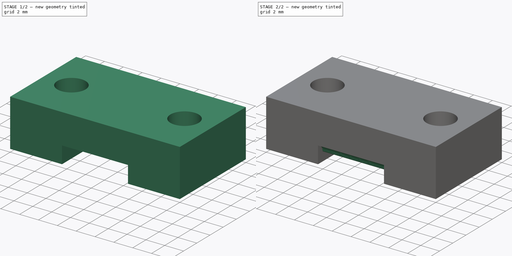
[diagram: build sequence overview — one tinted view per stage of 2, left to right]
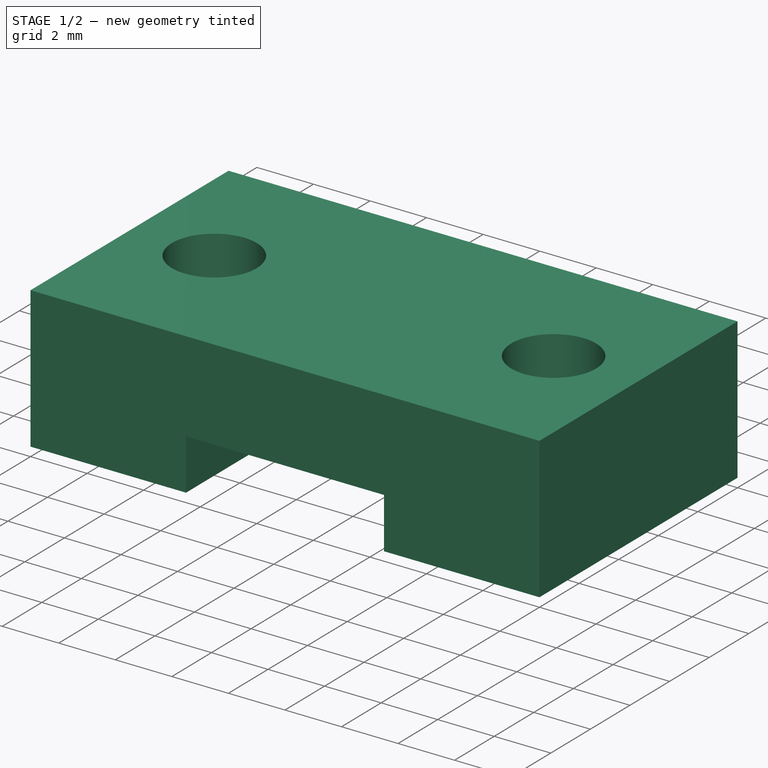
[diagram: stage 1 of 2 — iso view after this stage's code; geometry added in this stage tinted green]
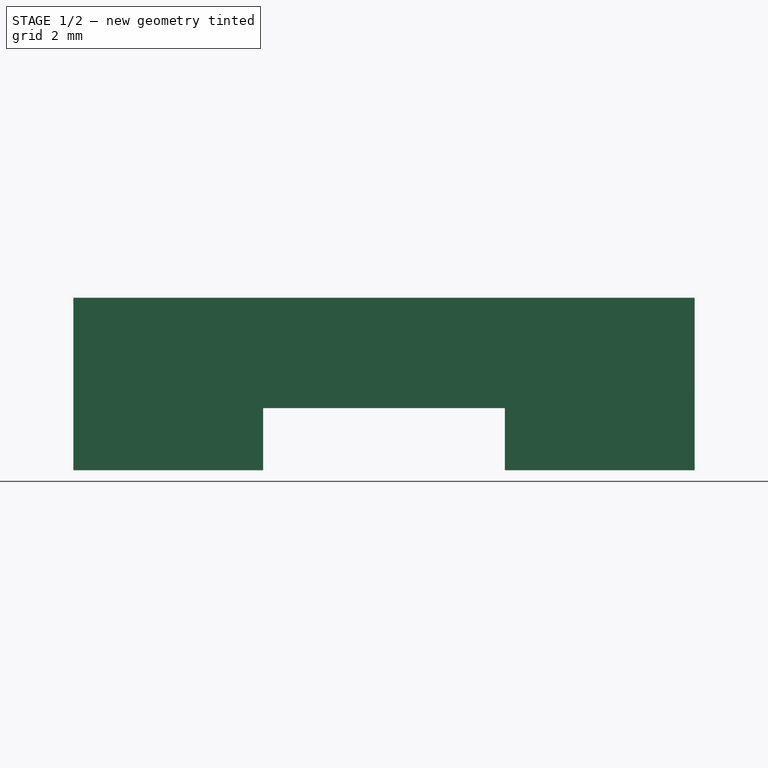
[diagram: stage 1 of 2 — front view after this stage's code; geometry added in this stage tinted green]
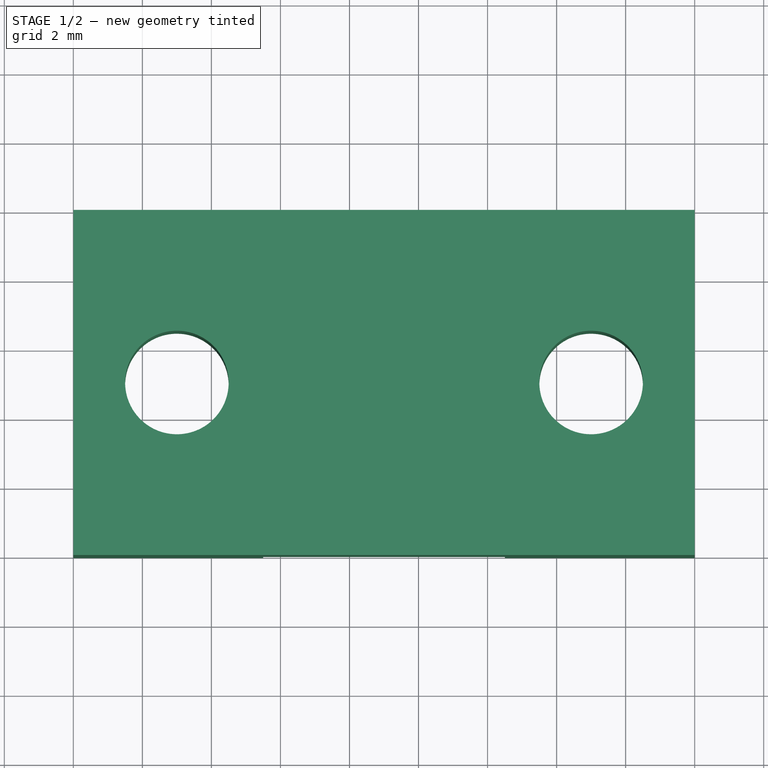
[diagram: stage 1 of 2 — top view after this stage's code; geometry added in this stage tinted green]
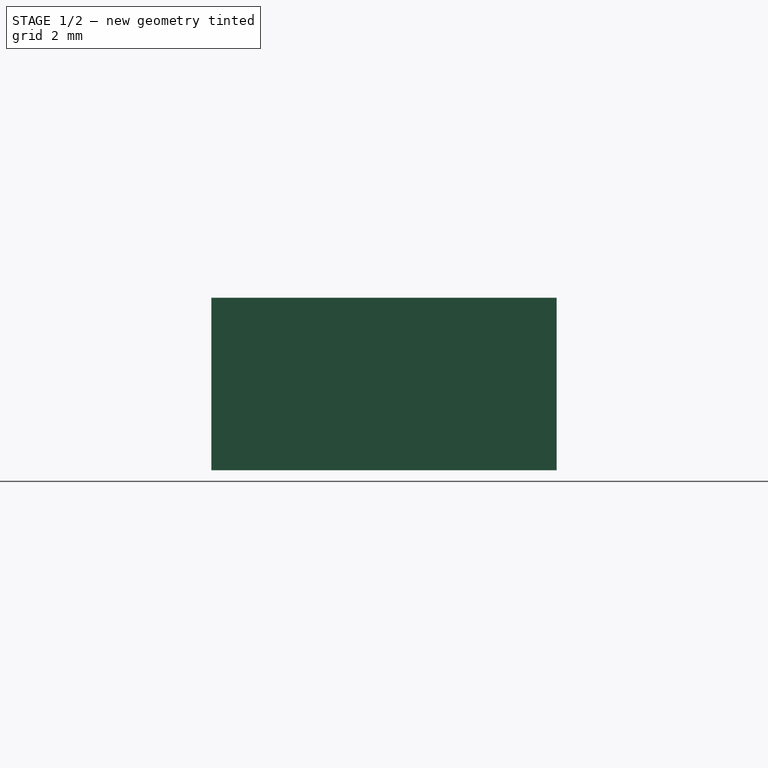
[diagram: stage 1 of 2 — right view after this stage's code; geometry added in this stage tinted green]
FCSTD DOCUMENT  (FreeCAD 0.18R13971 (Git))
Label: BedBeltClamp1
License: All rights reserved
LicenseURL: http://en.wikipedia.org/wiki/All_rights_reserved
objects: Sketcher::SketchObject×3, PartDesign::Pad×2, PartDesign::Plane×1, PartDesign::Pocket×1, PartDesign::Body×1
note: 11 computed .brp shape members not serialized (recipe doc carries the construction recipe); baked Part::Feature solids carry a one-line shape summary decoded from their .brp

FEATURE [Sketcher::SketchObject] Sketch  label="BaseSketch"
  MapMode = 5
  Support = -> [XY_Plane]
  sketch-geometry (12):
    g0: LineSegment StartX=0 StartY=0 StartZ=0 EndX=18 EndY=0 EndZ=0
    g1: LineSegment StartX=18 StartY=0 StartZ=0 EndX=18 EndY=10 EndZ=0
    g2: LineSegment StartX=18 StartY=10 StartZ=0 EndX=0 EndY=10 EndZ=0
    g3: LineSegment StartX=0 StartY=10 StartZ=0 EndX=0 EndY=0 EndZ=0
    g4: Circle CenterX=3 CenterY=5 CenterZ=0 NormalX=0 NormalY=0 NormalZ=1 AngleXU=0 Radius=1.5
    g5: Circle CenterX=15 CenterY=5 CenterZ=0 NormalX=0 NormalY=0 NormalZ=1 AngleXU=0 Radius=1.5
    g6: LineSegment [constr] StartX=3 StartY=5 StartZ=0 EndX=3 EndY=0 EndZ=0
    g7: LineSegment [constr] StartX=3 StartY=5 StartZ=0 EndX=3.00003 EndY=10 EndZ=0
    g8: LineSegment [constr] StartX=15 StartY=5 StartZ=0 EndX=15 EndY=10 EndZ=0
    g9: LineSegment [constr] StartX=15 StartY=5 StartZ=0 EndX=15 EndY=0 EndZ=0
    g10: LineSegment [constr] StartX=3 StartY=5 StartZ=0 EndX=0 EndY=5 EndZ=0
    g11: LineSegment [constr] StartX=15 StartY=5 StartZ=0 EndX=18 EndY=5 EndZ=0
  constraints (35):
    c: Coincident(g0,g1)
    c: Coincident(g1,g2)
    c: Coincident(g2,g3)
    c: Coincident(g3,g0)
    c: Horizontal(g0)
    c: Horizontal(g2)
    c: Vertical(g1)
    c: Vertical(g3)
    c: Coincident(g0,g-1)
    c: Distance(g2) = 18
    c: Distance(g3) = 10
    c: Equal(g4,g5)
    c: Radius(g4) = 1.5
    c: Coincident(g6,g4)
    c: PointOnObject(g6,g0)
    c: Vertical(g6)
    c: Coincident(g7,g4)
    c: PointOnObject(g7,g2)
    c: Coincident(g8,g5)
    c: PointOnObject(g8,g2)
    c: Coincident(g9,g5)
    c: PointOnObject(g9,g0)
    c: Vertical(g9)
    c: Coincident(g10,g4)
    c: PointOnObject(g10,g3)
    c: Horizontal(g10)
    c: Coincident(g11,g5)
    c: PointOnObject(g11,g1)
    c: Horizontal(g11)
    c: Equal(g7,g6)
    c: Equal(g6,g9)
    c: Equal(g9,g8)
    c: Vertical(g8)
    c: Equal(g10,g11)
    c: Distance(g10) = 3
FEATURE [PartDesign::Pad] Pad  label="BasePad"
  Length = 5
  Length2 = 100
  Profile = -> Sketch
  Type = 0
FEATURE [PartDesign::Plane] DatumPlane  label="TeethPlane"
  AttachmentOffset = pos=(0,1.8,5.5) rot=(0,0,1;0rad)
  MapMode = 2
  Placement = pos=(5.5,0,1.8) rot=(0.57735,0.57735,0.57735;2.0944rad)
  Support = -> [YZ_Plane]
FEATURE [Sketcher::SketchObject] Sketch008  label="TeethSketch"
  MapMode = 2
  Placement = pos=(5.5,0,1.8) rot=(0.57735,0.57735,0.57735;2.0944rad)
  Support = -> [DatumPlane]
  sketch-geometry (8):
    g0: BSplineCurve PolesCount=12 KnotsCount=8 Degree=3 IsPeriodic=0
    g1: BSplineCurve PolesCount=12 KnotsCount=8 Degree=3 IsPeriodic=0
    g2: BSplineCurve PolesCount=12 KnotsCount=8 Degree=3 IsPeriodic=0
    g3: LineSegment StartX=10 StartY=0.958783 StartZ=0 EndX=0 EndY=0.958783 EndZ=0
    g4: LineSegment StartX=0 StartY=0.958783 StartZ=0 EndX=0 EndY=0 EndZ=0
    g5: BSplineCurve PolesCount=12 KnotsCount=8 Degree=3 IsPeriodic=0
    g6: BSplineCurve PolesCount=12 KnotsCount=8 Degree=3 IsPeriodic=0
    g7: LineSegment StartX=10 StartY=0 StartZ=0 EndX=10 EndY=0.958783 EndZ=0
  constraints (22):
    c: Coincident(g1,g0)
    c: PointOnObject(g0,g-1)
    c: PointOnObject(g1,g-1)
    c: PointOnObject(g2,g-1)
    c: Horizontal(g3)
    c: Coincident(g4,g3)
    c: Coincident(g4,g-1)
    c: Vertical(g4)
    c: Coincident(g5,g2)
    c: PointOnObject(g5,g-1)
    c: Coincident(g6,g5)
    c: PointOnObject(g6,g-1)
    c: Distance(g0,g0) = 2
    c: Distance(g0,g1) = 2
    c: Distance(g1,g2) = 2
    c: Distance(g2,g5) = 2
    c: Distance(g5,g6) = 2
    c: Coincident(g7,g6)
    c: Coincident(g7,g3)
    c: Vertical(g7)
    c: Coincident(g1,g2)
    c: Coincident(g0,g4)
FEATURE [Sketcher::SketchObject] Sketch009  label="TeethNotchSketch"
  ExternalGeometry = -> [Pad]
  MapMode = 5
  Support = -> [XY_Plane]
  sketch-geometry (6):
    g0: LineSegment StartX=5.5 StartY=0 StartZ=0 EndX=12.5 EndY=0 EndZ=0
    g1: LineSegment StartX=12.5 StartY=0 StartZ=0 EndX=12.5 EndY=10 EndZ=0
    g2: LineSegment StartX=12.5 StartY=10 StartZ=0 EndX=5.5 EndY=10 EndZ=0
    g3: LineSegment StartX=5.5 StartY=10 StartZ=0 EndX=5.5 EndY=0 EndZ=0
    g4: LineSegment [constr] StartX=5.5 StartY=10 StartZ=0 EndX=0 EndY=10 EndZ=0
    g5: LineSegment [constr] StartX=12.5 StartY=10 StartZ=0 EndX=18 EndY=10 EndZ=0
  constraints (16):
    c: Coincident(g0,g1)
    c: Coincident(g1,g2)
    c: Coincident(g2,g3)
    c: Coincident(g3,g0)
    c: Horizontal(g0)
    c: Horizontal(g2)
    c: Vertical(g1)
    c: Vertical(g3)
    c: PointOnObject(g0,g-1)
    c: PointOnObject(g1,g-4)
    c: Coincident(g4,g2)
    c: Coincident(g4,g-4)
    c: Coincident(g5,g1)
    c: Coincident(g5,g-4)
    c: Equal(g5,g4)
    c: Distance(g2) = 7
FEATURE [PartDesign::Pocket] Pocket  label="TeethNotchPocket"
  BaseFeature = -> Pad
  Length = 1.8
  Length2 = 100
  Profile = -> Sketch009
  Reversed = true
  Type = 0
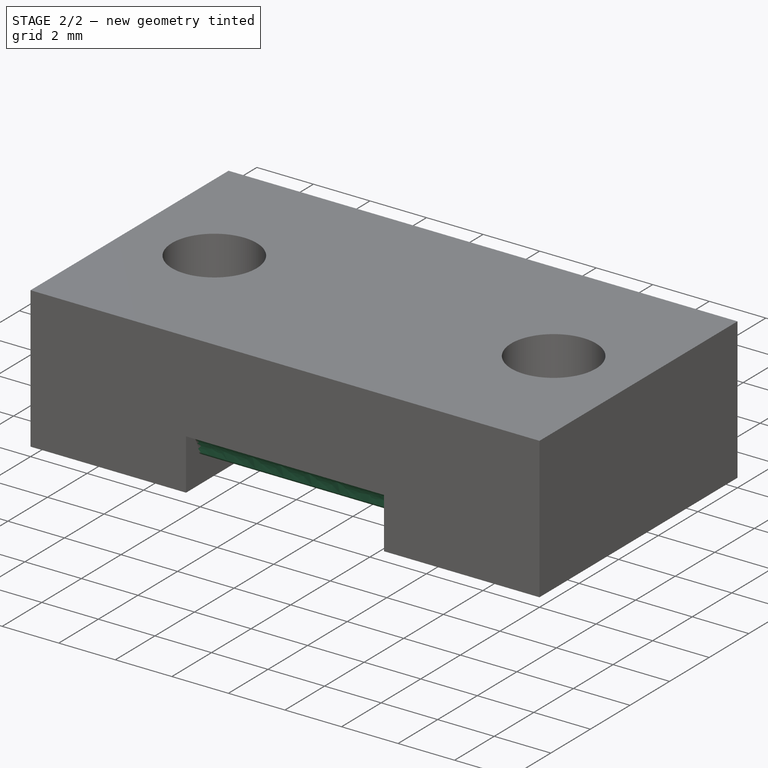
[diagram: stage 2 of 2 — iso view after this stage's code; geometry added in this stage tinted green]
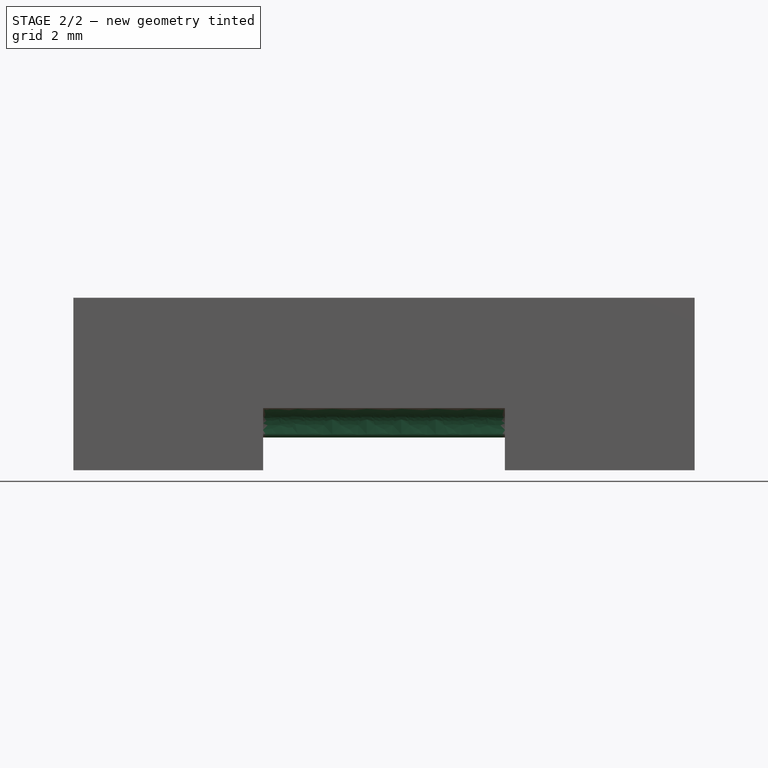
[diagram: stage 2 of 2 — front view after this stage's code; geometry added in this stage tinted green]
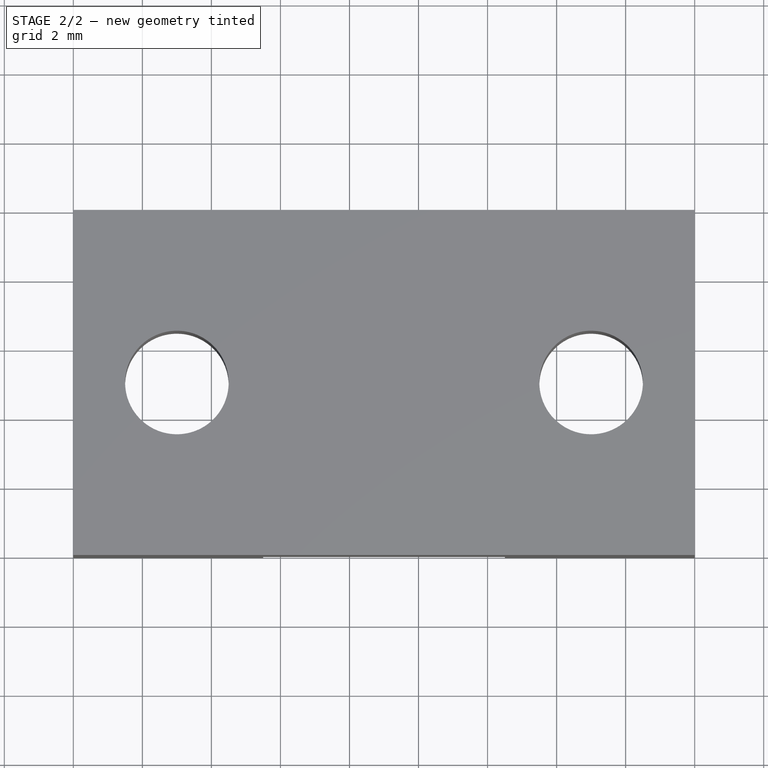
[diagram: stage 2 of 2 — top view after this stage's code; geometry added in this stage tinted green]
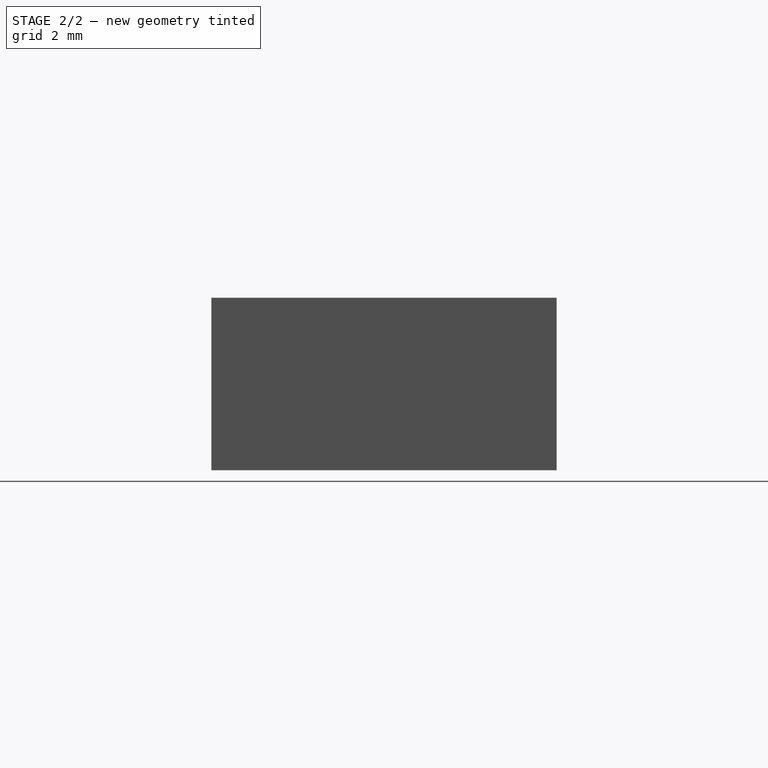
[diagram: stage 2 of 2 — right view after this stage's code; geometry added in this stage tinted green]
FEATURE [PartDesign::Pad] Pad001  label="TeethPad"
  BaseFeature = -> Pocket
  Length = 7
  Length2 = 100
  Profile = -> Sketch008
  Type = 0
FEATURE [PartDesign::Body] Body  label="ClampBase"
  Group = -> [Sketch,Pad,Sketch009,Pocket,DatumPlane,Sketch008,Pad001]
  Origin = -> Origin
  Tip = -> Pad001
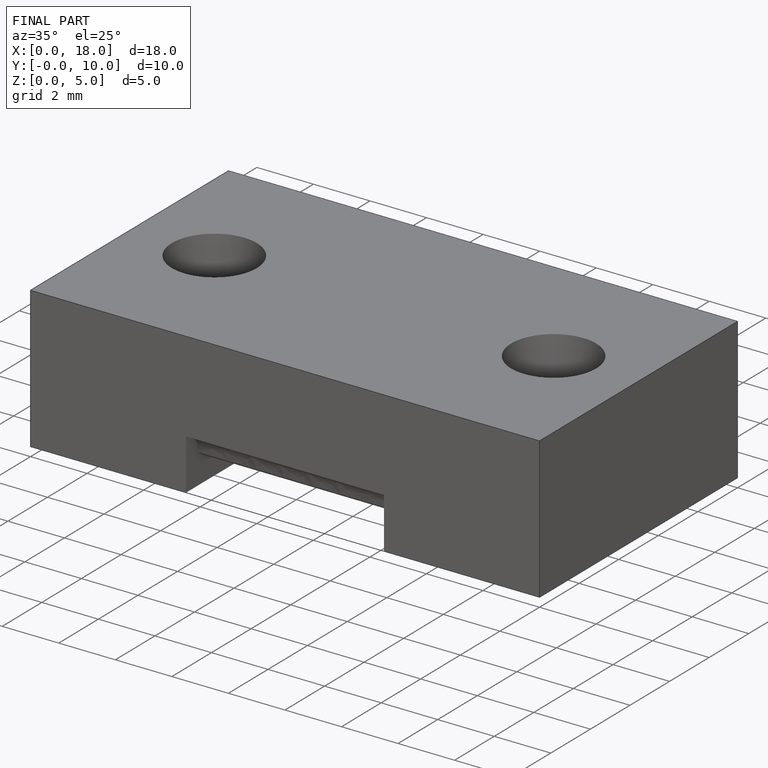
[diagram: finished part — iso view with bounding-box wireframe]
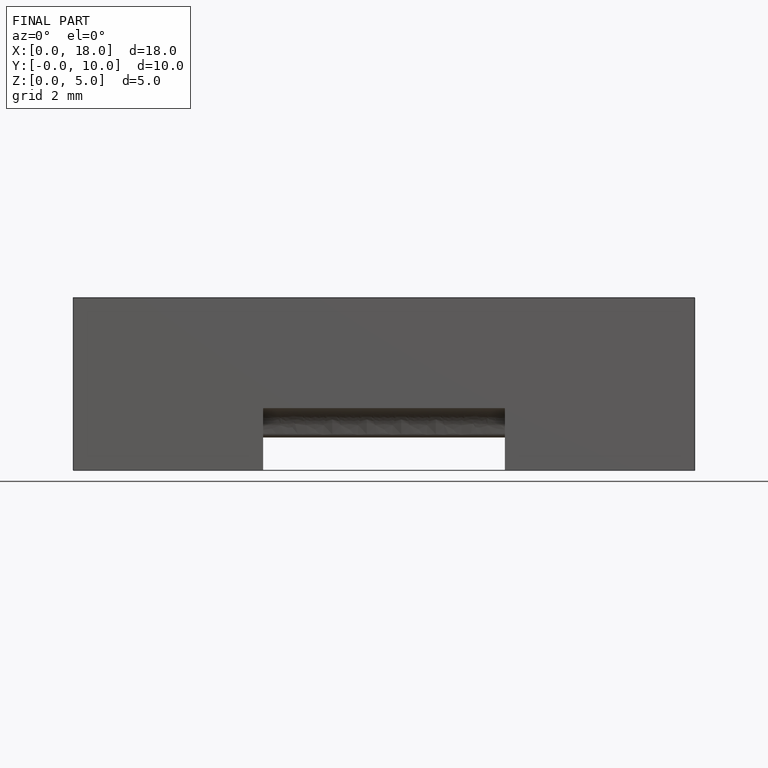
[diagram: finished part — front view with bounding-box wireframe]
